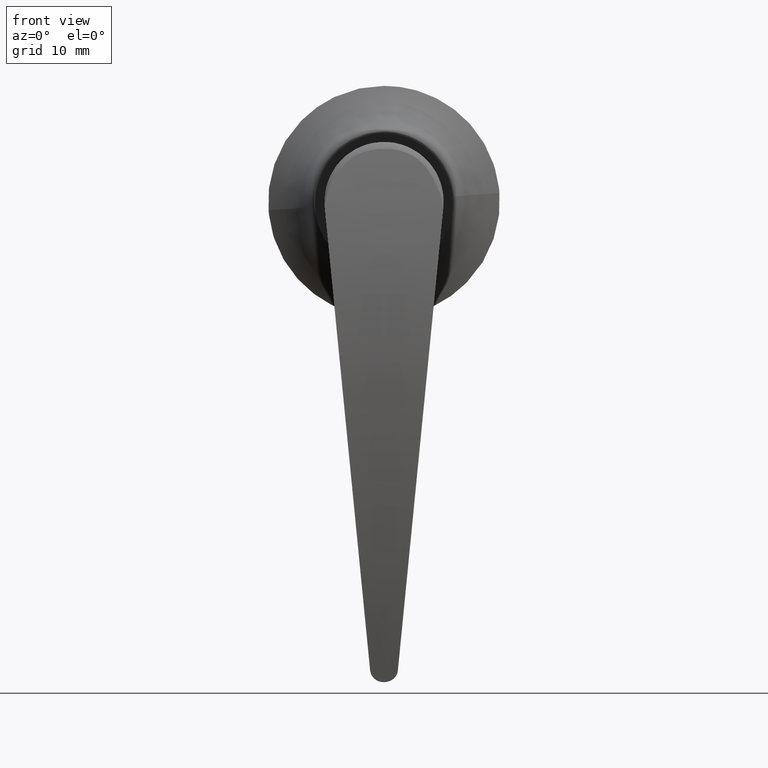
[diagram: clean part render]
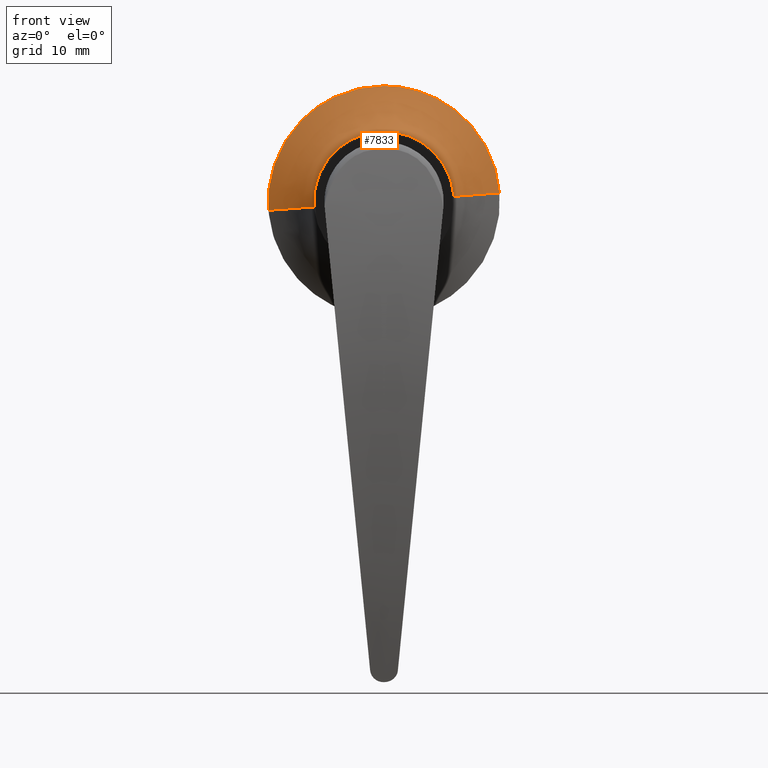
[diagram: same view with one face highlighted and labeled with its STEP entity id]
A machine part, front view. The second image highlights one B-rep face of the part: STEP entity #7833.
In plain terms, the highlighted face is a freeform B-spline surface patch.
Its self-contained STEP definition (entity closure, byte-faithful):
#7571=CARTESIAN_POINT('',(0.0,3.989864E-014,10.000212073612390));
#7572=VERTEX_POINT('',#7571);
#7573=CARTESIAN_POINT('',(-9.971800473701837,1.253926E-011,-0.753284030125119));
#7574=VERTEX_POINT('',#7573);
#7575=CARTESIAN_POINT('',(0.0,3.989864E-014,10.000212073612390));
#7576=CARTESIAN_POINT('',(-10.000212073615634,5.813876E-012,10.000212073612222));
#7577=CARTESIAN_POINT('',(-10.000212073619061,1.208351E-011,-4.965270E-013));
#7578=CARTESIAN_POINT('',(-10.000212073619185,1.231998E-011,-0.377177814958723));
#7579=CARTESIAN_POINT('',(-9.971800473701837,1.253926E-011,-0.753284030125119));
#7587=(BOUNDED_CURVE()B_SPLINE_CURVE(2,(#7575,#7576,#7577,#7578,#7579),.UNSPECIFIED.,.F.,.U.)B_SPLINE_CURVE_WITH_KNOTS((3,2,3),(0.0,0.250000000000000,0.263129840737954),.UNSPECIFIED.)CURVE()GEOMETRIC_REPRESENTATION_ITEM()RATIONAL_B_SPLINE_CURVE((1.0,0.707106781186548,1.0,0.984617434735010,0.970850634526585))REPRESENTATION_ITEM(''));
#7588=EDGE_CURVE('',#7572,#7574,#7587,.T.);
#7605=CARTESIAN_POINT('',(9.971800473701837,1.253926E-011,0.753284030125119));
#7606=VERTEX_POINT('',#7605);
#7622=CARTESIAN_POINT('',(9.971800473701837,1.253926E-011,0.753284030125119));
#7623=CARTESIAN_POINT('',(9.273274340805413,6.289579E-012,10.000212073612682));
#7624=CARTESIAN_POINT('',(0.0,3.989864E-014,10.000212073612390));
#7632=(BOUNDED_CURVE()B_SPLINE_CURVE(2,(#7622,#7623,#7624),.UNSPECIFIED.,.F.,.U.)B_SPLINE_CURVE_WITH_KNOTS((3,3),(0.763129840737954,1.0),.UNSPECIFIED.)CURVE()GEOMETRIC_REPRESENTATION_ITEM()RATIONAL_B_SPLINE_CURVE((0.970850634526585,0.722489346451537,1.0))REPRESENTATION_ITEM(''));
#7633=EDGE_CURVE('',#7606,#7572,#7632,.T.);
#7674=CARTESIAN_POINT('',(-16.453118010187541,6.000186093607256,-1.242884572361815));
#7675=VERTEX_POINT('',#7674);
#7676=CARTESIAN_POINT('',(-9.971800473701837,1.253926E-011,-0.753284030125119));
#7677=CARTESIAN_POINT('',(-12.216333799898893,4.082234003280425,-0.922835564623056));
#7678=CARTESIAN_POINT('',(-16.453118010187541,6.000186093607256,-1.242884572361815));
#7686=(BOUNDED_CURVE()B_SPLINE_CURVE(2,(#7676,#7677,#7678),.UNSPECIFIED.,.F.,.U.)B_SPLINE_CURVE_WITH_KNOTS((3,3),(-1.518015413886010,-0.495052065146422),.UNSPECIFIED.)CURVE()GEOMETRIC_REPRESENTATION_ITEM()RATIONAL_B_SPLINE_CURVE((0.933209133198964,0.884835299736554,0.931988852802776))REPRESENTATION_ITEM(''));
#7687=EDGE_CURVE('',#7574,#7675,#7686,.T.);
#7719=CARTESIAN_POINT('',(16.453118010187541,6.000186093607256,1.242884572361816));
#7720=VERTEX_POINT('',#7719);
#7736=CARTESIAN_POINT('',(9.971800473701837,1.253926E-011,0.753284030125119));
#7737=CARTESIAN_POINT('',(12.216333799898893,4.082234003280425,0.922835564623056));
#7738=CARTESIAN_POINT('',(16.453118010187541,6.000186093607256,1.242884572361816));
#7746=(BOUNDED_CURVE()B_SPLINE_CURVE(2,(#7736,#7737,#7738),.UNSPECIFIED.,.F.,.U.)B_SPLINE_CURVE_WITH_KNOTS((3,3),(-1.518015413886010,-0.495052065146422),.UNSPECIFIED.)CURVE()GEOMETRIC_REPRESENTATION_ITEM()RATIONAL_B_SPLINE_CURVE((0.933209133198964,0.884835299736554,0.931988852802776))REPRESENTATION_ITEM(''));
#7747=EDGE_CURVE('',#7606,#7720,#7746,.T.);
#7753=CARTESIAN_POINT('',(9.786468723933501,-0.388925841620583,0.464700318789406));
#7754=CARTESIAN_POINT('',(9.776216415021688,-0.388925841620583,0.600418022573416));
#7755=CARTESIAN_POINT('',(9.028118207262676,-0.388925841620583,10.503569774565451));
#7756=CARTESIAN_POINT('',(-0.737725783651386,-0.388925841620583,9.765843990914064));
#7757=CARTESIAN_POINT('',(-10.503569774565451,-0.388925841620583,9.028118207262677));
#7758=CARTESIAN_POINT('',(-9.755471730476515,-0.388925841620583,-0.875031378102576));
#7759=CARTESIAN_POINT('',(-9.745219581455105,-0.388925841620583,-1.010746965294270));
#7760=CARTESIAN_POINT('',(12.131386416225881,4.202768859390234,0.576046303728620));
#7761=CARTESIAN_POINT('',(12.118677570514905,4.202768859390234,0.744283075803536));
#7762=CARTESIAN_POINT('',(11.191328933164652,4.202768859390233,13.020310724891237));
#7763=CARTESIAN_POINT('',(-0.914490895863290,4.202768859390234,12.105819829027951));
#7764=CARTESIAN_POINT('',(-13.020310724891234,4.202768859390233,11.191328933164655));
#7765=CARTESIAN_POINT('',(-12.092962290427741,4.202768859390234,-1.084696030154822));
#7766=CARTESIAN_POINT('',(-12.080253642918214,4.202768859390234,-1.252930178484649));
#7767=CARTESIAN_POINT('',(16.892299346796019,6.175263971929581,0.802113317170758));
#7768=CARTESIAN_POINT('',(16.874602966618486,6.175263971929580,1.036373921649328));
#7769=CARTESIAN_POINT('',(15.583320153302795,6.175263971929581,18.130078360951799));
#7770=CARTESIAN_POINT('',(-1.273379103824495,6.175263971929580,16.856699257127303));
#7771=CARTESIAN_POINT('',(-18.130078360951799,6.175263971929581,15.583320153302809));
#7772=CARTESIAN_POINT('',(-16.838795830144953,6.175263971929581,-1.510380546212697));
#7773=CARTESIAN_POINT('',(-16.821099725952223,6.175263971929581,-1.744637497268158));
#7781=(BOUNDED_SURFACE()B_SPLINE_SURFACE(2,2,((#7753,#7760,#7767),(#7754,#7761,#7768),(#7755,#7762,#7769),(#7756,#7763,#7770),(#7757,#7764,#7771),(#7758,#7765,#7772),(#7759,#7766,#7773)),.UNSPECIFIED.,.F.,.F.,.U.)B_SPLINE_SURFACE_WITH_KNOTS((3,1,2,1,3),(3,3),(0.0,0.560182364425814,28.568851583832028,56.577520803238251,57.137694276572773),(0.0,9.987383175017261),.UNSPECIFIED.)GEOMETRIC_REPRESENTATION_ITEM()RATIONAL_B_SPLINE_SURFACE(((0.949272830388513,0.890133295485281,0.947914979761958),(0.943776425174165,0.884979315375297,0.942426436667989),(0.663464164765436,0.622130460825831,0.662515138096828),(0.938280019959817,0.879825335265314,0.936937893574019),(0.663464164765436,0.622130460825831,0.662515138096828),(0.943776337936430,0.884979233572458,0.942426349555040),(0.949272655913043,0.890133131879603,0.947914805536060)))REPRESENTATION_ITEM('')SURFACE());
#7782=ORIENTED_EDGE('',*,*,#7588,.F.);
#7783=ORIENTED_EDGE('',*,*,#7633,.F.);
#7784=ORIENTED_EDGE('',*,*,#7747,.T.);
#7785=CARTESIAN_POINT('',(0.0,6.000188086388063,16.499999999999979));
#7786=VERTEX_POINT('',#7785);
#7787=CARTESIAN_POINT('',(16.453118010187541,6.000186093607256,1.242884572361816));
#7788=CARTESIAN_POINT('',(15.300582864891165,6.000187089997659,16.499999833731160));
#7789=CARTESIAN_POINT('',(0.0,6.000188086388063,16.499999999999979));
#7797=(BOUNDED_CURVE()B_SPLINE_CURVE(2,(#7787,#7788,#7789),.UNSPECIFIED.,.F.,.U.)B_SPLINE_CURVE_WITH_KNOTS((3,3),(0.763129763690471,1.0),.UNSPECIFIED.)CURVE()GEOMETRIC_REPRESENTATION_ITEM()RATIONAL_B_SPLINE_CURVE((0.970850796097116,0.722489256184796,1.0))REPRESENTATION_ITEM(''));
#7798=EDGE_CURVE('',#7720,#7786,#7797,.T.);
#7799=ORIENTED_EDGE('',*,*,#7798,.T.);
#7800=CARTESIAN_POINT('',(-11.768631963970529,6.000187129361155,11.565002320087530));
#7801=VERTEX_POINT('',#7800);
#7802=CARTESIAN_POINT('',(0.0,6.000188086388063,16.499999999999979));
#7803=CARTESIAN_POINT('',(-6.919024602756691,6.000187698938986,16.500000309260525));
#7804=CARTESIAN_POINT('',(-11.768631963970529,6.000187129361155,11.565002320087530));
#7812=(BOUNDED_CURVE()B_SPLINE_CURVE(2,(#7802,#7803,#7804),.UNSPECIFIED.,.F.,.U.)B_SPLINE_CURVE_WITH_KNOTS((3,3),(0.0,0.126316772845736),.UNSPECIFIED.)CURVE()GEOMETRIC_REPRESENTATION_ITEM()RATIONAL_B_SPLINE_CURVE((1.0,0.852010695244339,0.853569641628032))REPRESENTATION_ITEM(''));
#7813=EDGE_CURVE('',#7786,#7801,#7812,.T.);
#7814=ORIENTED_EDGE('',*,*,#7813,.T.);
#7815=CARTESIAN_POINT('',(-11.768631963970529,6.000187129361155,11.565002320087530));
#7816=CARTESIAN_POINT('',(-16.499996931824995,6.000186573670669,6.750327771049343));
#7817=CARTESIAN_POINT('',(-16.499995799935920,6.000186166036677,0.000000361745810));
#7818=CARTESIAN_POINT('',(-16.499995695584740,6.000186128456065,-0.622326140687305));
#7819=CARTESIAN_POINT('',(-16.453118010187545,6.000186093607256,-1.242884572361816));
#7827=(BOUNDED_CURVE()B_SPLINE_CURVE(2,(#7815,#7816,#7817,#7818,#7819),.UNSPECIFIED.,.F.,.U.)B_SPLINE_CURVE_WITH_KNOTS((3,2,3),(0.126316772845736,0.250000000000000,0.263129763690471),.UNSPECIFIED.)CURVE()GEOMETRIC_REPRESENTATION_ITEM()RATIONAL_B_SPLINE_CURVE((0.853569641628032,0.855096085942209,1.0,0.984617525001752,0.970850796097116))REPRESENTATION_ITEM(''));
#7828=EDGE_CURVE('',#7801,#7675,#7827,.T.);
#7829=ORIENTED_EDGE('',*,*,#7828,.T.);
#7830=ORIENTED_EDGE('',*,*,#7687,.F.);
#7831=EDGE_LOOP('',(#7782,#7783,#7784,#7799,#7814,#7829,#7830));
#7832=FACE_OUTER_BOUND('',#7831,.T.);
#7833=ADVANCED_FACE('',(#7832),#7781,.F.);